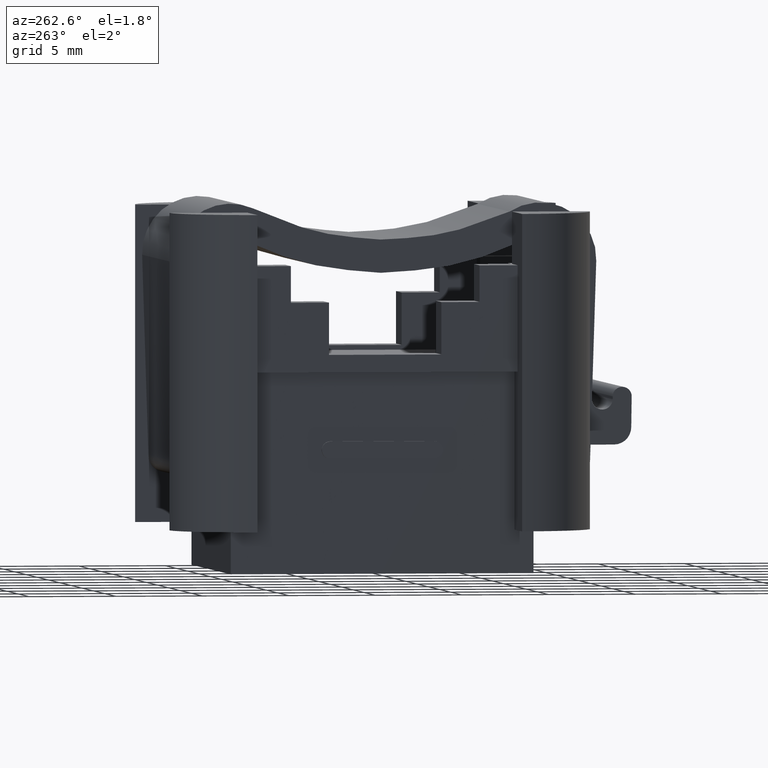
[diagram: clean part render]
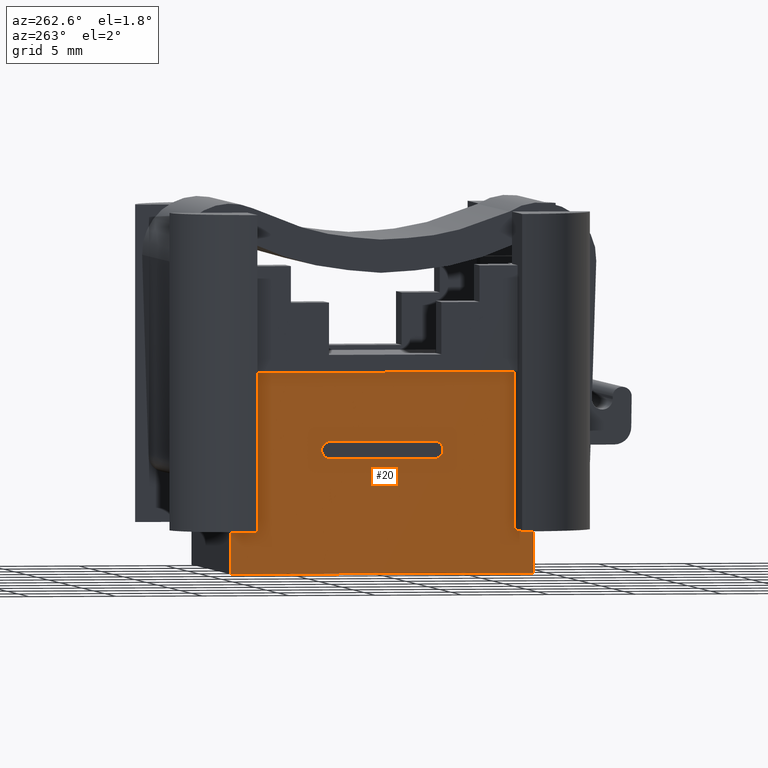
[diagram: same view with one face highlighted and labeled with its STEP entity id]
A machine part, auxiliary view. The second image highlights one B-rep face of the part: STEP entity #20.
In plain terms, the highlighted planar face has unit normal (-1, 0, 0).
Its self-contained STEP definition (entity closure, byte-faithful):
#20 = ADVANCED_FACE ( 'NONE', ( #2860, #2853 ), #2854, .T. ) ;
#62 = DIRECTION ( 'NONE',  ( 0.0000000000000000000, 0.0000000000000000000, 1.000000000000000000 ) ) ;
#72 = CARTESIAN_POINT ( 'NONE',  ( -0.9909090909090587700, 4.495245476765726200, 20.50000000000000000 ) ) ;
#80 = LINE ( 'NONE', #72, #892 ) ;
#125 = CARTESIAN_POINT ( 'NONE',  ( -0.9909090909090587700, -14.72606040412509300, -0.2000000000000000100 ) ) ;
#140 = LINE ( 'NONE', #125, #940 ) ;
#147 = DIRECTION ( 'NONE',  ( 0.0000000000000000000, -1.000000000000000000, 0.0000000000000000000 ) ) ;
#164 = DIRECTION ( 'NONE',  ( 0.0000000000000000000, 0.0000000000000000000, -1.000000000000000000 ) ) ;
#178 = LINE ( 'NONE', #180, #998 ) ;
#180 = CARTESIAN_POINT ( 'NONE',  ( -0.9909090909090592100, 19.79524547676573900, 0.0000000000000000000 ) ) ;
#516 = AXIS2_PLACEMENT_3D ( 'NONE', #2855, #2856, #2872 ) ;
#572 = VECTOR ( 'NONE', #2074, 1000.000000000000000 ) ;
#709 = VECTOR ( 'NONE', #1729, 1000.000000000000000 ) ;
#734 = VECTOR ( 'NONE', #1112, 1000.000000000000000 ) ;
#771 = CIRCLE ( 'NONE', #804, 0.5000000000000004400 ) ;
#799 = VECTOR ( 'NONE', #1414, 1000.000000000000000 ) ;
#801 = VECTOR ( 'NONE', #1472, 1000.000000000000000 ) ;
#804 = AXIS2_PLACEMENT_3D ( 'NONE', #1211, #1229, #1247 ) ;
#844 = VECTOR ( 'NONE', #1568, 1000.000000000000000 ) ;
#865 = CIRCLE ( 'NONE', #867, 0.5000000000000004400 ) ;
#867 = AXIS2_PLACEMENT_3D ( 'NONE', #1566, #1164, #1242 ) ;
#885 = VECTOR ( 'NONE', #2769, 1000.000000000000000 ) ;
#892 = VECTOR ( 'NONE', #62, 1000.000000000000000 ) ;
#940 = VECTOR ( 'NONE', #147, 1000.000000000000000 ) ;
#998 = VECTOR ( 'NONE', #164, 1000.000000000000000 ) ;
#1100 = LINE ( 'NONE', #1104, #734 ) ;
#1104 = CARTESIAN_POINT ( 'NONE',  ( -0.9909090909090587700, 20.89394666863502400, 2.299999999999999800 ) ) ;
#1112 = DIRECTION ( 'NONE',  ( -0.0000000000000000000, 1.000000000000000000, -0.0000000000000000000 ) ) ;
#1164 = DIRECTION ( 'NONE',  ( -1.000000000000000000, 0.0000000000000000000, 0.0000000000000000000 ) ) ;
#1211 = CARTESIAN_POINT ( 'NONE',  ( -0.9909090909090592100, 9.145245476764882800, 6.900000000000037700 ) ) ;
#1229 = DIRECTION ( 'NONE',  ( -1.000000000000000000, 0.0000000000000000000, 0.0000000000000000000 ) ) ;
#1242 = DIRECTION ( 'NONE',  ( 0.0000000000000000000, 0.0000000000000000000, 1.000000000000000000 ) ) ;
#1247 = DIRECTION ( 'NONE',  ( 0.0000000000000000000, 0.0000000000000000000, 1.000000000000000000 ) ) ;
#1414 = DIRECTION ( 'NONE',  ( -0.0000000000000000000, 1.000000000000000000, -0.0000000000000000000 ) ) ;
#1419 = CARTESIAN_POINT ( 'NONE',  ( -0.9909090909090587700, 20.89394666863502400, 2.299999999999999800 ) ) ;
#1454 = LINE ( 'NONE', #1419, #799 ) ;
#1464 = LINE ( 'NONE', #1506, #801 ) ;
#1472 = DIRECTION ( 'NONE',  ( -0.0000000000000000000, -0.0000000000000000000, -1.000000000000000000 ) ) ;
#1506 = CARTESIAN_POINT ( 'NONE',  ( -0.9909090909090587700, 3.396544284896433600, 2.299999999999999800 ) ) ;
#1566 = CARTESIAN_POINT ( 'NONE',  ( -0.9909090909090592100, 15.14524547676488800, 6.900000000000059000 ) ) ;
#1568 = DIRECTION ( 'NONE',  ( 0.0000000000000000000, 1.000000000000000000, 0.0000000000000000000 ) ) ;
#1580 = CARTESIAN_POINT ( 'NONE',  ( -0.9909090909090592100, 9.145245476764882800, 7.400000000000059000 ) ) ;
#1593 = LINE ( 'NONE', #1580, #844 ) ;
#1708 = CARTESIAN_POINT ( 'NONE',  ( -0.9909090909090587700, 20.89394666863502400, 2.299999999999999800 ) ) ;
#1729 = DIRECTION ( 'NONE',  ( -0.0000000000000000000, -0.0000000000000000000, -1.000000000000000000 ) ) ;
#1732 = LINE ( 'NONE', #1708, #709 ) ;
#1749 = CARTESIAN_POINT ( 'NONE',  ( -0.9909090909090587700, 3.396544284896433600, -0.2000000000000000100 ) ) ;
#1761 = CARTESIAN_POINT ( 'NONE',  ( -0.9909090909090592100, 4.495245476765726200, 11.40000000000000200 ) ) ;
#1766 = CARTESIAN_POINT ( 'NONE',  ( -0.9909090909090587700, 4.495245476765726200, 2.299999999999999800 ) ) ;
#1793 = CARTESIAN_POINT ( 'NONE',  ( -0.9909090909090592100, 19.79524547676573900, 11.40000000000000000 ) ) ;
#1802 = CARTESIAN_POINT ( 'NONE',  ( -0.9909090909090587700, 19.79524547676573900, 2.299999999999999800 ) ) ;
#1828 = CARTESIAN_POINT ( 'NONE',  ( -0.9909090909090587700, 3.396544284896434000, 2.299999999999999400 ) ) ;
#1860 = CARTESIAN_POINT ( 'NONE',  ( -0.9909090909090587700, 20.89394666863502400, 2.299999999999999800 ) ) ;
#1863 = CARTESIAN_POINT ( 'NONE',  ( -0.9909090909090587700, 20.89394666863502400, -0.2000000000000000100 ) ) ;
#1889 = CARTESIAN_POINT ( 'NONE',  ( -0.9909090909090592100, 15.14524547676488800, 6.400000000000058100 ) ) ;
#1898 = CARTESIAN_POINT ( 'NONE',  ( -0.9909090909090592100, 9.145245476764882800, 7.400000000000059000 ) ) ;
#1931 = CARTESIAN_POINT ( 'NONE',  ( -0.9909090909090592100, 9.145245476764882800, 6.400000000000037700 ) ) ;
#1967 = CARTESIAN_POINT ( 'NONE',  ( -0.9909090909090592100, 15.14524547676488800, 7.400000000000059000 ) ) ;
#2065 = LINE ( 'NONE', #2072, #572 ) ;
#2072 = CARTESIAN_POINT ( 'NONE',  ( -0.9909090909090592100, 19.29524547676573900, 11.40000000000000000 ) ) ;
#2074 = DIRECTION ( 'NONE',  ( -0.0000000000000000000, 1.000000000000000000, -1.213093339843919900E-016 ) ) ;
#2753 = LINE ( 'NONE', #2763, #885 ) ;
#2763 = CARTESIAN_POINT ( 'NONE',  ( -0.9909090909090592100, 9.145245476764882800, 6.400000000000058100 ) ) ;
#2769 = DIRECTION ( 'NONE',  ( -0.0000000000000000000, -1.000000000000000000, -0.0000000000000000000 ) ) ;
#2853 = FACE_BOUND ( 'NONE', #3806, .T. ) ;
#2854 = PLANE ( 'NONE',  #516 ) ;
#2855 = CARTESIAN_POINT ( 'NONE',  ( -0.9909090909090592100, 4.995245476765726200, 0.0000000000000000000 ) ) ;
#2856 = DIRECTION ( 'NONE',  ( -1.000000000000000000, 0.0000000000000000000, 0.0000000000000000000 ) ) ;
#2860 = FACE_OUTER_BOUND ( 'NONE', #3808, .T. ) ;
#2872 = DIRECTION ( 'NONE',  ( 0.0000000000000000000, 0.0000000000000000000, 1.000000000000000000 ) ) ;
#3395 = ORIENTED_EDGE ( 'NONE', *, *, #4132, .F. ) ;
#3411 = ORIENTED_EDGE ( 'NONE', *, *, #4126, .F. ) ;
#3412 = ORIENTED_EDGE ( 'NONE', *, *, #3870, .T. ) ;
#3416 = ORIENTED_EDGE ( 'NONE', *, *, #3988, .T. ) ;
#3419 = ORIENTED_EDGE ( 'NONE', *, *, #4231, .T. ) ;
#3420 = ORIENTED_EDGE ( 'NONE', *, *, #4203, .T. ) ;
#3421 = ORIENTED_EDGE ( 'NONE', *, *, #4040, .F. ) ;
#3425 = ORIENTED_EDGE ( 'NONE', *, *, #4019, .T. ) ;
#3427 = ORIENTED_EDGE ( 'NONE', *, *, #4212, .T. ) ;
#3428 = ORIENTED_EDGE ( 'NONE', *, *, #4078, .T. ) ;
#3437 = ORIENTED_EDGE ( 'NONE', *, *, #4087, .F. ) ;
#3440 = ORIENTED_EDGE ( 'NONE', *, *, #4148, .F. ) ;
#3474 = VERTEX_POINT ( 'NONE', #1761 ) ;
#3522 = VERTEX_POINT ( 'NONE', #1766 ) ;
#3531 = VERTEX_POINT ( 'NONE', #1793 ) ;
#3533 = VERTEX_POINT ( 'NONE', #1749 ) ;
#3539 = VERTEX_POINT ( 'NONE', #1802 ) ;
#3551 = VERTEX_POINT ( 'NONE', #1863 ) ;
#3557 = VERTEX_POINT ( 'NONE', #1860 ) ;
#3580 = VERTEX_POINT ( 'NONE', #1828 ) ;
#3633 = VERTEX_POINT ( 'NONE', #1889 ) ;
#3658 = VERTEX_POINT ( 'NONE', #1898 ) ;
#3666 = VERTEX_POINT ( 'NONE', #1931 ) ;
#3681 = VERTEX_POINT ( 'NONE', #1967 ) ;
#3806 = EDGE_LOOP ( 'NONE', ( #3440, #3395, #3411, #3421 ) ) ;
#3808 = EDGE_LOOP ( 'NONE', ( #3412, #3419, #3425, #3416, #3427, #3437, #3428, #3420 ) ) ;
#3870 = EDGE_CURVE ( 'NONE', #3474, #3531, #2065, .T. ) ;
#3988 = EDGE_CURVE ( 'NONE', #3557, #3551, #1732, .T. ) ;
#4019 = EDGE_CURVE ( 'NONE', #3539, #3557, #1100, .T. ) ;
#4040 = EDGE_CURVE ( 'NONE', #3666, #3658, #771, .T. ) ;
#4078 = EDGE_CURVE ( 'NONE', #3580, #3522, #1454, .T. ) ;
#4087 = EDGE_CURVE ( 'NONE', #3580, #3533, #1464, .T. ) ;
#4126 = EDGE_CURVE ( 'NONE', #3658, #3681, #1593, .T. ) ;
#4132 = EDGE_CURVE ( 'NONE', #3681, #3633, #865, .T. ) ;
#4148 = EDGE_CURVE ( 'NONE', #3633, #3666, #2753, .T. ) ;
#4203 = EDGE_CURVE ( 'NONE', #3522, #3474, #80, .T. ) ;
#4212 = EDGE_CURVE ( 'NONE', #3551, #3533, #140, .T. ) ;
#4231 = EDGE_CURVE ( 'NONE', #3531, #3539, #178, .T. ) ;